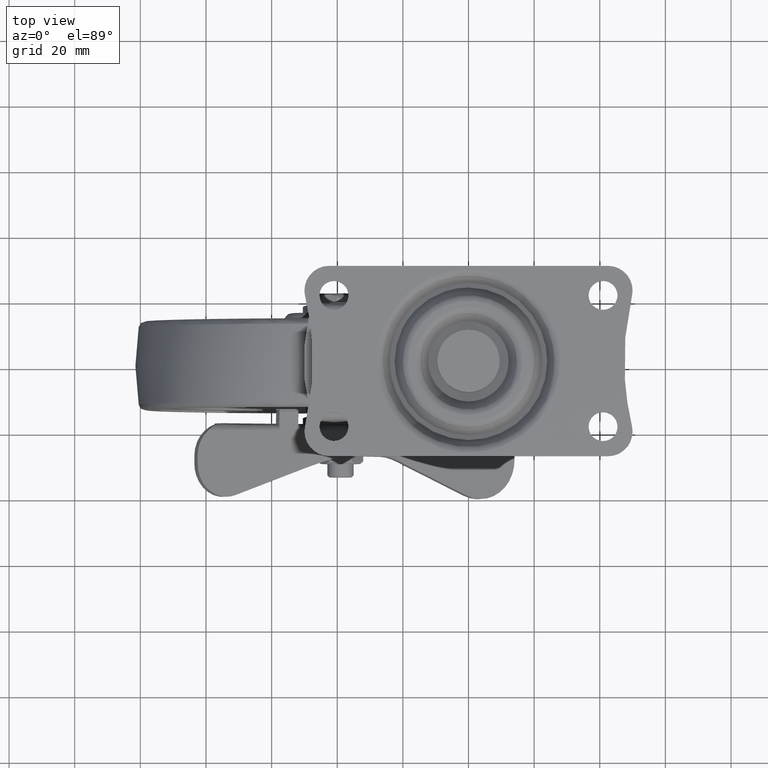
[diagram: clean part render]
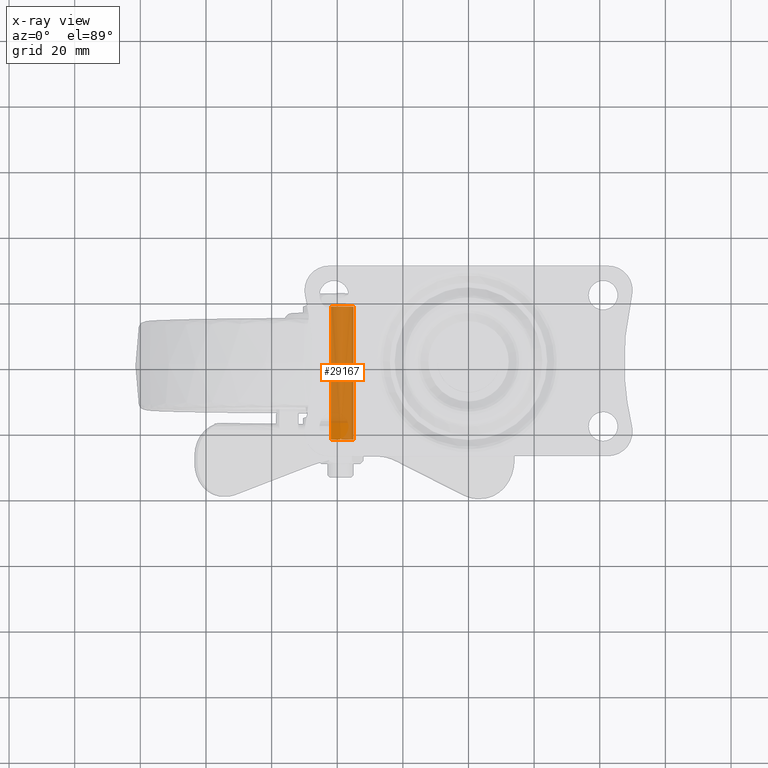
[diagram: x-ray — body ghosted, one internal face saturated and labeled with its STEP entity id]
A machine part, top view, then the same camera in x-ray: the body is ghosted and one INTERNAL B-rep face — a face not visible from any outside direction — is saturated and labeled: STEP entity #29167.
In plain terms, the highlighted face is a freeform B-spline surface patch.
Its self-contained STEP definition (entity closure, byte-faithful):
#28808=CARTESIAN_POINT('',(-39.0,17.999992000000500,-79.499999999999886));
#28809=VERTEX_POINT('',#28808);
#28810=CARTESIAN_POINT('',(-35.000000000003169,17.999992000000500,-83.500005119947360));
#28811=VERTEX_POINT('',#28810);
#28812=CARTESIAN_POINT('',(-39.0,17.999992000000500,-79.499999999999886));
#28813=CARTESIAN_POINT('',(-38.607277215797950,17.999992000000489,-79.499815599690052));
#28814=CARTESIAN_POINT('',(-37.952897962946132,17.999992000000489,-79.597211940220021));
#28815=CARTESIAN_POINT('',(-37.071847984194527,17.999992000000510,-79.962156070477292));
#28816=CARTESIAN_POINT('',(-36.311614112729998,17.999992000000461,-80.483657634102073));
#28817=CARTESIAN_POINT('',(-35.677226928015841,17.999992000000521,-81.201094258117720));
#28818=CARTESIAN_POINT('',(-35.146522452475459,17.999992000000489,-82.224028708116080));
#28819=CARTESIAN_POINT('',(-34.999546075868622,17.999992000000521,-83.009050740632404));
#28820=CARTESIAN_POINT('',(-35.000000000003169,17.999992000000500,-83.500005119947360));
#28821=B_SPLINE_CURVE_WITH_KNOTS('',3,(#28812,#28813,#28814,#28815,#28816,#28817,#28818,#28819,#28820),.UNSPECIFIED.,.F.,.U.,(4,1,1,1,1,1,4),(0.000000488134947,1.178123957091780,1.963549707975978,2.847210512945711,3.927079609632653,4.810690967425768,6.283345863140446),.UNSPECIFIED.);
#28822=EDGE_CURVE('',#28809,#28811,#28821,.T.);
#28824=CARTESIAN_POINT('',(-36.098501398716053,17.999992000001409,-86.253418982393882));
#28825=VERTEX_POINT('',#28824);
#28826=CARTESIAN_POINT('',(-35.000000000003169,17.999992000000500,-83.500005119947360));
#28827=CARTESIAN_POINT('',(-34.999662285029707,17.999992000000670,-83.974573072034133));
#28828=CARTESIAN_POINT('',(-35.182334457497490,17.999992000000962,-84.986558295143922));
#28829=CARTESIAN_POINT('',(-35.727799166296293,17.999992000001289,-85.863708154816493));
#28830=CARTESIAN_POINT('',(-36.098501398716053,17.999992000001409,-86.253418982393882));
#28831=B_SPLINE_CURVE_WITH_KNOTS('',3,(#28826,#28827,#28828,#28829,#28830),.UNSPECIFIED.,.F.,.U.,(4,1,4),(0.000000113967036,1.423597009231550,3.036939199186914),.UNSPECIFIED.);
#28832=EDGE_CURVE('',#28811,#28825,#28831,.T.);
#28858=CARTESIAN_POINT('',(-41.901498604371326,17.999992000001409,-80.746581020859537));
#28859=VERTEX_POINT('',#28858);
#28868=CARTESIAN_POINT('',(-41.901498604371326,17.999992000001409,-80.746581020859537));
#28869=CARTESIAN_POINT('',(-41.645537831331247,17.999992000001349,-80.476654272260873));
#28870=CARTESIAN_POINT('',(-41.084298969481033,17.999992000001161,-80.030371131427714));
#28871=CARTESIAN_POINT('',(-40.082050461359209,17.999992000000820,-79.599749641558461));
#28872=CARTESIAN_POINT('',(-39.371985240425872,17.999992000000681,-79.499882729446682));
#28873=CARTESIAN_POINT('',(-39.0,17.999992000000500,-79.499999999999886));
#28874=B_SPLINE_CURVE_WITH_KNOTS('',3,(#28868,#28869,#28870,#28871,#28872,#28873),.UNSPECIFIED.,.F.,.U.,(4,1,1,4),(0.000000117640068,1.115954473825784,2.130445834036530,3.246400190078660),.UNSPECIFIED.);
#28875=EDGE_CURVE('',#28859,#28809,#28874,.T.);
#29028=CARTESIAN_POINT('',(-36.098502400535807,-22.499997899999901,-86.253418907522871));
#29029=VERTEX_POINT('',#29028);
#29030=CARTESIAN_POINT('',(-36.098502400535807,-22.499997899999901,-86.253418907522871));
#29031=CARTESIAN_POINT('',(-36.098501398716053,17.999992000001409,-86.253418982393882));
#29032=QUASI_UNIFORM_CURVE('',1,(#29030,#29031),.UNSPECIFIED.,.F.,.U.);
#29033=EDGE_CURVE('',#29029,#28825,#29032,.T.);
#29058=CARTESIAN_POINT('',(-41.901497846613587,-22.499997899999912,-80.746581352918213));
#29059=VERTEX_POINT('',#29058);
#29069=CARTESIAN_POINT('',(-41.901497846613587,-22.499997899999912,-80.746581352918213));
#29070=CARTESIAN_POINT('',(-41.901498604371326,17.999992000001409,-80.746581020859537));
#29071=QUASI_UNIFORM_CURVE('',1,(#29069,#29070),.UNSPECIFIED.,.F.,.U.);
#29072=EDGE_CURVE('',#29059,#28859,#29071,.T.);
#29079=CARTESIAN_POINT('',(-41.901497484049230,-23.512497647499920,-80.746581697224912));
#29080=CARTESIAN_POINT('',(-39.148079181274134,-23.512497647499920,-77.845084213175696));
#29081=CARTESIAN_POINT('',(-36.246581697224897,-23.512497647499920,-80.598502515950770));
#29082=CARTESIAN_POINT('',(-33.345084213175667,-23.512497647499920,-83.351920818725858));
#29083=CARTESIAN_POINT('',(-36.098502515950770,-23.512497647499920,-86.253418302775088));
#29084=CARTESIAN_POINT('',(-41.901497484049230,19.037804241188020,-80.746581697224912));
#29085=CARTESIAN_POINT('',(-39.148079181274134,19.037804241188013,-77.845084213175696));
#29086=CARTESIAN_POINT('',(-36.246581697224897,19.037804241188020,-80.598502515950770));
#29087=CARTESIAN_POINT('',(-33.345084213175667,19.037804241188013,-83.351920818725858));
#29088=CARTESIAN_POINT('',(-36.098502515950770,19.037804241188020,-86.253418302775088));
#29096=(BOUNDED_SURFACE()B_SPLINE_SURFACE(2,1,((#29079,#29084),(#29080,#29085),(#29081,#29086),(#29082,#29087),(#29083,#29088)),.UNSPECIFIED.,.F.,.F.,.U.)B_SPLINE_SURFACE_WITH_KNOTS((3,2,3),(2,2),(0.0,6.627416997969708,13.254833995939419),(0.0,42.550301888687940),.UNSPECIFIED.)GEOMETRIC_REPRESENTATION_ITEM()RATIONAL_B_SPLINE_SURFACE(((1.0,1.0),(0.707106781186548,0.707106781186548),(1.0,1.0),(0.707106781186548,0.707106781186548),(1.0,1.0)))REPRESENTATION_ITEM('')SURFACE());
#29097=ORIENTED_EDGE('',*,*,#28832,.F.);
#29098=ORIENTED_EDGE('',*,*,#28822,.F.);
#29099=ORIENTED_EDGE('',*,*,#28875,.F.);
#29100=ORIENTED_EDGE('',*,*,#29072,.F.);
#29101=CARTESIAN_POINT('',(-39.0,-22.499997899999901,-79.499998999999889));
#29102=VERTEX_POINT('',#29101);
#29103=CARTESIAN_POINT('',(-41.901497846613587,-22.499997899999912,-80.746581352918213));
#29104=CARTESIAN_POINT('',(-41.599067319433523,-22.499997899999890,-80.427460388542883));
#29105=CARTESIAN_POINT('',(-41.024347195281869,-22.499997899999929,-79.994163824909066));
#29106=CARTESIAN_POINT('',(-40.014399497566750,-22.499997899999901,-79.590280681470105));
#29107=CARTESIAN_POINT('',(-39.371986121338942,-22.499997899999890,-79.499875892398720));
#29108=CARTESIAN_POINT('',(-39.0,-22.499997899999901,-79.499998999999889));
#29109=B_SPLINE_CURVE_WITH_KNOTS('',3,(#29103,#29104,#29105,#29106,#29107,#29108),.UNSPECIFIED.,.F.,.U.,(4,1,1,4),(0.000000117732772,1.318880415330030,2.130445708777706,3.246399999310144),.UNSPECIFIED.);
#29110=EDGE_CURVE('',#29059,#29102,#29109,.T.);
#29111=ORIENTED_EDGE('',*,*,#29110,.T.);
#29112=CARTESIAN_POINT('',(-39.0,-22.235086023760552,-79.500000000000000));
#29113=VERTEX_POINT('',#29112);
#29114=CARTESIAN_POINT('',(-39.0,-22.499997899999901,-79.499998999999889));
#29115=CARTESIAN_POINT('',(-39.0,-22.235086023760552,-79.500000000000000));
#29116=QUASI_UNIFORM_CURVE('',1,(#29114,#29115),.UNSPECIFIED.,.F.,.U.);
#29117=EDGE_CURVE('',#29102,#29113,#29116,.T.);
#29118=ORIENTED_EDGE('',*,*,#29117,.T.);
#29119=CARTESIAN_POINT('',(-38.930190374250849,-22.207842215762099,-79.500609219374411));
#29120=VERTEX_POINT('',#29119);
#29121=CARTESIAN_POINT('',(-39.0,-22.235086023760552,-79.500000000000000));
#29122=CARTESIAN_POINT('',(-38.930190374250849,-22.207842215762099,-79.500609219374411));
#29123=QUASI_UNIFORM_CURVE('',1,(#29121,#29122),.UNSPECIFIED.,.F.,.U.);
#29124=EDGE_CURVE('',#29113,#29120,#29123,.T.);
#29125=ORIENTED_EDGE('',*,*,#29124,.T.);
#29126=CARTESIAN_POINT('',(-38.930190356798448,-22.499997899999901,-79.500608219526711));
#29127=VERTEX_POINT('',#29126);
#29128=CARTESIAN_POINT('',(-38.930190356798448,-22.499997899999901,-79.500608219526711));
#29129=CARTESIAN_POINT('',(-38.930190374250849,-22.207842215762099,-79.500609219374411));
#29130=QUASI_UNIFORM_CURVE('',1,(#29128,#29129),.UNSPECIFIED.,.F.,.U.);
#29131=EDGE_CURVE('',#29127,#29120,#29130,.T.);
#29132=ORIENTED_EDGE('',*,*,#29131,.F.);
#29133=CARTESIAN_POINT('',(-35.080300201584151,-22.499997899999880,-82.702528063001168));
#29134=VERTEX_POINT('',#29133);
#29135=CARTESIAN_POINT('',(-38.930190356798448,-22.499997899999901,-79.500608219526711));
#29136=CARTESIAN_POINT('',(-38.620262953748522,-22.499997899999929,-79.505959082842395));
#29137=CARTESIAN_POINT('',(-37.973580704367137,-22.499997899999840,-79.593033246430608));
#29138=CARTESIAN_POINT('',(-36.916818761703482,-22.499997899999961,-80.010770464971088));
#29139=CARTESIAN_POINT('',(-35.983963893560443,-22.499997899999819,-80.769955921888865));
#29140=CARTESIAN_POINT('',(-35.354338740339323,-22.499997899999990,-81.751811125175507));
#29141=CARTESIAN_POINT('',(-35.142046863383662,-22.499997899999730,-82.398770631525167));
#29142=CARTESIAN_POINT('',(-35.080300201584151,-22.499997899999880,-82.702528063001168));
#29143=B_SPLINE_CURVE_WITH_KNOTS('',3,(#29135,#29136,#29137,#29138,#29139,#29140,#29141,#29142),.UNSPECIFIED.,.F.,.U.,(4,1,1,1,1,4),(0.000000365681970,0.929931152893660,1.944452209747952,3.381603698227464,4.480691928907003,5.410622716118797),.UNSPECIFIED.);
#29144=EDGE_CURVE('',#29127,#29134,#29143,.T.);
#29145=ORIENTED_EDGE('',*,*,#29144,.T.);
#29146=CARTESIAN_POINT('',(-35.559374939378088,-22.499997899999901,-85.540124308031793));
#29147=VERTEX_POINT('',#29146);
#29148=CARTESIAN_POINT('',(-35.080300201584151,-22.499997899999880,-82.702528063001168));
#29149=CARTESIAN_POINT('',(-35.019100908986282,-22.499997899999890,-83.003010170982989));
#29150=CARTESIAN_POINT('',(-34.966335228926447,-22.499997899999880,-83.618087061809618));
#29151=CARTESIAN_POINT('',(-35.108306422893037,-22.499997899999919,-84.595586230250746));
#29152=CARTESIAN_POINT('',(-35.371576628851713,-22.499997899999901,-85.223668197461777));
#29153=CARTESIAN_POINT('',(-35.559374939378088,-22.499997899999901,-85.540124308031793));
#29154=B_SPLINE_CURVE_WITH_KNOTS('',3,(#29148,#29149,#29150,#29151,#29152,#29153),.UNSPECIFIED.,.F.,.U.,(4,1,1,4),(0.000000097568186,0.919948890074660,1.839874618299448,2.943800136055513),.UNSPECIFIED.);
#29155=EDGE_CURVE('',#29134,#29147,#29154,.T.);
#29156=ORIENTED_EDGE('',*,*,#29155,.T.);
#29157=CARTESIAN_POINT('',(-35.559374939378088,-22.499997899999901,-85.540124308031793));
#29158=CARTESIAN_POINT('',(-35.711681566319307,-22.499997899999901,-85.797032991369235));
#29159=CARTESIAN_POINT('',(-35.892877780997317,-22.499997899999901,-86.036802055822506));
#29160=CARTESIAN_POINT('',(-36.098502400535807,-22.499997899999901,-86.253418907522871));
#29161=B_SPLINE_CURVE_WITH_KNOTS('',3,(#29157,#29158,#29159,#29160),.UNSPECIFIED.,.F.,.U.,(4,4),(8.598742E-009,0.896019598266946),.UNSPECIFIED.);
#29162=EDGE_CURVE('',#29147,#29029,#29161,.T.);
#29163=ORIENTED_EDGE('',*,*,#29162,.T.);
#29164=ORIENTED_EDGE('',*,*,#29033,.T.);
#29165=EDGE_LOOP('',(#29097,#29098,#29099,#29100,#29111,#29118,#29125,#29132,#29145,#29156,#29163,#29164));
#29166=FACE_OUTER_BOUND('',#29165,.T.);
#29167=ADVANCED_FACE('',(#29166),#29096,.T.);